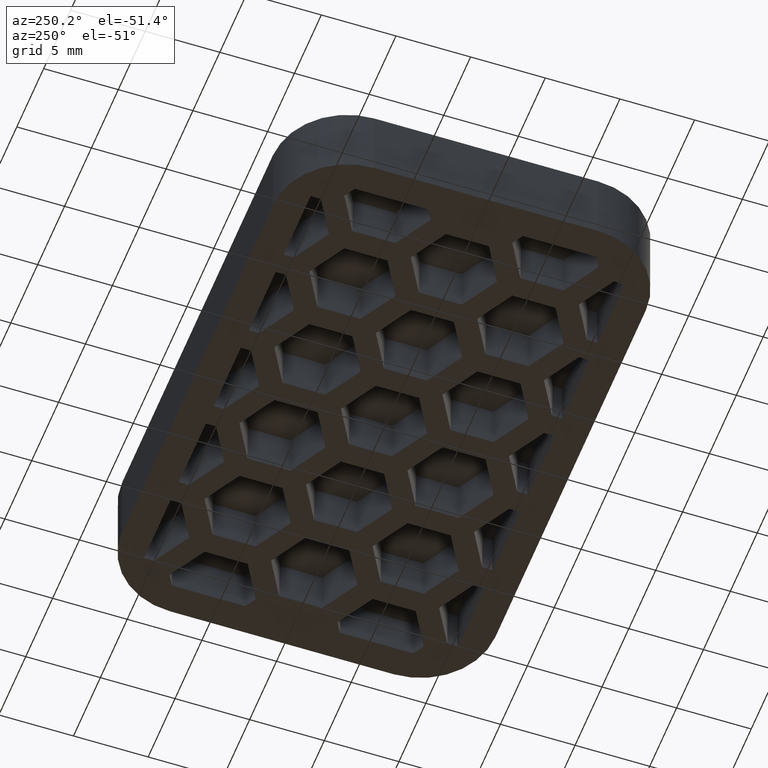
[diagram: clean part render]
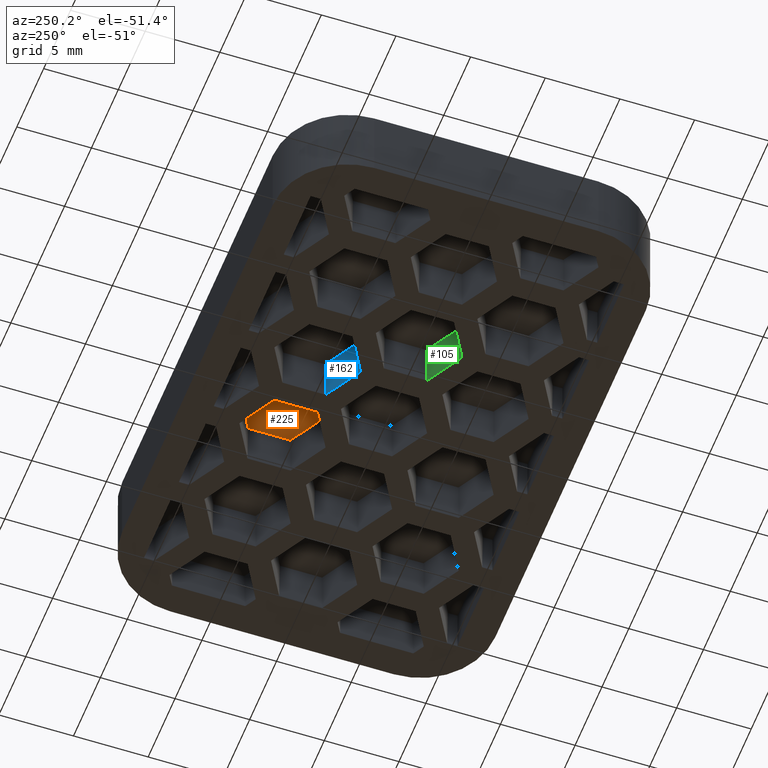
[diagram: same view with three faces highlighted in distinct colors, each labeled with its STEP entity id]
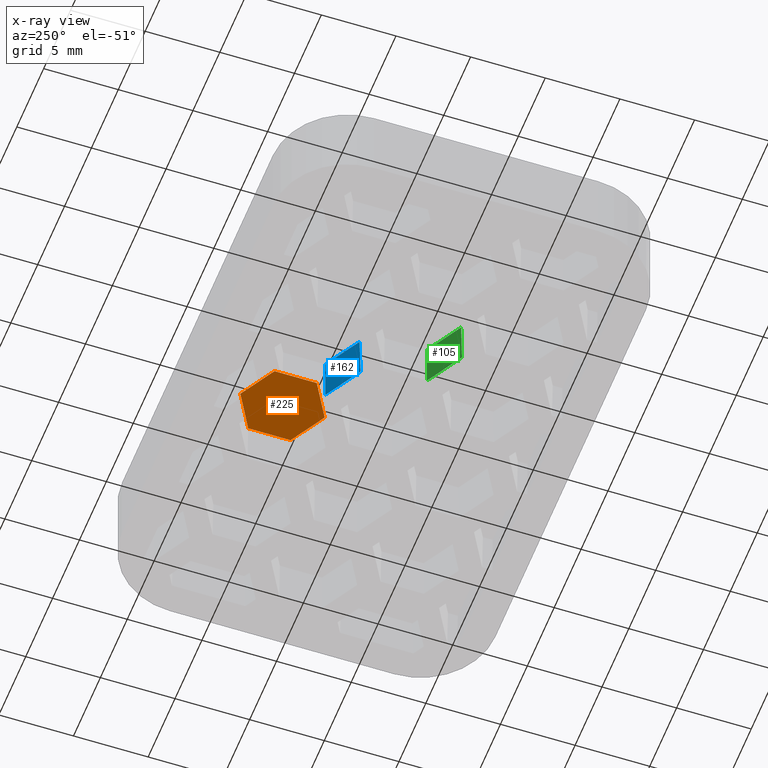
[diagram: x-ray of the same camera — body ghosted, the three highlighted faces saturated]
A machine part, auxiliary view with three faces highlighted in distinct colors.
The next image is the same camera in x-ray (body ghosted, the three faces saturated) — at least one of them is partly hidden behind the body in this view.
Their STEP definitions:

[orange] entity #225 — the highlighted planar face has unit normal (0, -0, -1).
#225 = ADVANCED_FACE( '', ( #609 ), #610, .T. );
#609 = FACE_OUTER_BOUND( '', #1097, .T. );
#610 = PLANE( '', #1098 );
#1097 = EDGE_LOOP( '', ( #2368, #2369, #2370, #2371, #2372, #2373 ) );
#1098 = AXIS2_PLACEMENT_3D( '', #2374, #2375, #2376 );
#2368 = ORIENTED_EDGE( '', *, *, #3402, .F. );
#2369 = ORIENTED_EDGE( '', *, *, #3406, .F. );
#2370 = ORIENTED_EDGE( '', *, *, #3409, .F. );
#2371 = ORIENTED_EDGE( '', *, *, #3412, .F. );
#2372 = ORIENTED_EDGE( '', *, *, #3415, .F. );
#2373 = ORIENTED_EDGE( '', *, *, #3418, .F. );
#2374 = CARTESIAN_POINT( '', ( 30.5000000000000, 1.83690953073356E-016, 3.00000000000000 ) );
#2375 = DIRECTION( '', ( 0.000000000000000, -6.12303176911189E-017, -1.00000000000000 ) );
#2376 = DIRECTION( '', ( 0.000000000000000, -1.00000000000000, 6.12303176911189E-017 ) );
#3402 = EDGE_CURVE( '', #4191, #4192, #4193, .F. );
#3406 = EDGE_CURVE( '', #4199, #4191, #4200, .F. );
#3409 = EDGE_CURVE( '', #4204, #4199, #4205, .F. );
#3412 = EDGE_CURVE( '', #4209, #4204, #4210, .F. );
#3415 = EDGE_CURVE( '', #4214, #4209, #4215, .F. );
#3418 = EDGE_CURVE( '', #4192, #4214, #4219, .F. );
#4191 = VERTEX_POINT( '', #5441 );
#4192 = VERTEX_POINT( '', #5442 );
#4193 = LINE( '', #5443, #5444 );
#4199 = VERTEX_POINT( '', #5453 );
#4200 = LINE( '', #5454, #5455 );
#4204 = VERTEX_POINT( '', #5461 );
#4205 = LINE( '', #5462, #5463 );
#4209 = VERTEX_POINT( '', #5469 );
#4210 = LINE( '', #5470, #5471 );
#4214 = VERTEX_POINT( '', #5477 );
#4215 = LINE( '', #5478, #5479 );
#4219 = LINE( '', #5485, #5486 );
#5441 = CARTESIAN_POINT( '', ( 5.69763480521535, 4.21602251092987, 3.00000000000000 ) );
#5442 = CARTESIAN_POINT( '', ( 5.69763480521535, 7.04230773826783, 3.00000000000000 ) );
#5443 = CARTESIAN_POINT( '', ( 5.69763480521535, 10.5000000000000, 2.99999999999998 ) );
#5444 = VECTOR( '', #6434, 1000.00000000000 );
#5453 = CARTESIAN_POINT( '', ( 3.25000000000000, 2.80287989726090, 3.00000000000000 ) );
#5454 = CARTESIAN_POINT( '', ( -10.1045492275240, -4.90737269415620, 2.99999999999998 ) );
#5455 = VECTOR( '', #6438, 1000.00000000000 );
#5461 = CARTESIAN_POINT( '', ( 0.802365194784645, 4.21602251092987, 3.00000000000000 ) );
#5462 = CARTESIAN_POINT( '', ( -16.7704507724760, 14.3616925400475, 2.99999999999998 ) );
#5463 = VECTOR( '', #6441, 1000.00000000000 );
#5469 = CARTESIAN_POINT( '', ( 0.802365194784646, 7.04230773826783, 3.00000000000000 ) );
#5470 = CARTESIAN_POINT( '', ( 0.802365194784643, 10.5000000000000, 2.99999999999998 ) );
#5471 = VECTOR( '', #6444, 1000.00000000000 );
#5477 = CARTESIAN_POINT( '', ( 3.25000000000000, 8.45545035193681, 2.99999999999998 ) );
#5478 = CARTESIAN_POINT( '', ( -12.5521840327393, -0.667944853149263, 2.99999999999998 ) );
#5479 = VECTOR( '', #6447, 1000.00000000000 );
#5485 = CARTESIAN_POINT( '', ( -14.3228159672606, 18.6011203810545, 2.99999999999998 ) );
#5486 = VECTOR( '', #6450, 1000.00000000000 );
#6434 = DIRECTION( '', ( -4.44089209850063E-016, -1.00000000000000, 6.12303176911189E-017 ) );
#6438 = DIRECTION( '', ( -0.866025403784439, -0.500000000000000, 3.06151588455594E-017 ) );
#6441 = DIRECTION( '', ( -0.866025403784439, 0.500000000000000, -3.06151588455594E-017 ) );
#6444 = DIRECTION( '', ( -2.77555756156289E-016, 1.00000000000000, -6.12303176911189E-017 ) );
#6447 = DIRECTION( '', ( 0.866025403784438, 0.500000000000000, -3.06151588455595E-017 ) );
#6450 = DIRECTION( '', ( 0.866025403784439, -0.500000000000000, 3.06151588455594E-017 ) );

[blue] entity #162 — the highlighted planar face has unit normal (0.4999, -0.8659, 0.0175).
#162 = ADVANCED_FACE( '', ( #483 ), #484, .F. );
#483 = FACE_OUTER_BOUND( '', #971, .T. );
#484 = PLANE( '', #972 );
#971 = EDGE_LOOP( '', ( #1925, #1926, #1927, #1928 ) );
#972 = AXIS2_PLACEMENT_3D( '', #1929, #1930, #1931 );
#1925 = ORIENTED_EDGE( '', *, *, #3388, .T. );
#1926 = ORIENTED_EDGE( '', *, *, #3387, .T. );
#1927 = ORIENTED_EDGE( '', *, *, #3389, .F. );
#1928 = ORIENTED_EDGE( '', *, *, #3390, .F. );
#1929 = CARTESIAN_POINT( '', ( -0.750000000000005, 4.18578945162479, -7.19519112181835E-015 ) );
#1930 = DIRECTION( '', ( 0.499923847578195, -0.865893503920754, 0.0174524064372836 ) );
#1931 = DIRECTION( '', ( 0.866025403784439, 0.500000000000000, -3.06058338817720E-017 ) );
#3387 = EDGE_CURVE( '', #4161, #4166, #4168, .T. );
#3388 = EDGE_CURVE( '', #4169, #4161, #4170, .F. );
#3389 = EDGE_CURVE( '', #4171, #4166, #4172, .F. );
#3390 = EDGE_CURVE( '', #4169, #4171, #4173, .T. );
#4161 = VERTEX_POINT( '', #5393 );
#4166 = VERTEX_POINT( '', #5400 );
#4168 = LINE( '', #5403, #5404 );
#4169 = VERTEX_POINT( '', #5405 );
#4170 = LINE( '', #5406, #5407 );
#4171 = VERTEX_POINT( '', #5408 );
#4172 = LINE( '', #5409, #5410 );
#4173 = LINE( '', #5411, #5412 );
#5393 = CARTESIAN_POINT( '', ( -0.802365194784650, 4.21602251092987, 3.00000000000000 ) );
#5400 = CARTESIAN_POINT( '', ( -0.750000000000006, 4.18578945162479, -7.19519112181835E-015 ) );
#5403 = CARTESIAN_POINT( '', ( -0.749010194399842, 4.18521798709508, -0.0567059248553564 ) );
#5404 = VECTOR( '', #6419, 1000.00000000000 );
#5405 = CARTESIAN_POINT( '', ( -3.25000000000000, 2.80287989726089, 3.00000000000000 ) );
#5406 = CARTESIAN_POINT( '', ( -11.7295492275240, -2.09279013185677, 2.99999999999998 ) );
#5407 = VECTOR( '', #6420, 1000.00000000000 );
#5408 = CARTESIAN_POINT( '', ( -3.25000000000001, 2.74241377865072, -7.10681277081451E-015 ) );
#5409 = CARTESIAN_POINT( '', ( -2.00000000000001, 3.46410161513775, -7.15100194631643E-015 ) );
#5410 = VECTOR( '', #6421, 1000.00000000000 );
#5411 = CARTESIAN_POINT( '', ( -3.25000000000001, 2.74299989611708, 0.0290799614642774 ) );
#5412 = VECTOR( '', #6422, 1000.00000000000 );
#6419 = DIRECTION( '', ( 0.0174515205435363, -0.0100756400835790, -0.999796942337605 ) );
#6420 = DIRECTION( '', ( -0.866025403784439, -0.500000000000000, 3.06151588455594E-017 ) );
#6421 = DIRECTION( '', ( -0.866025403784439, -0.500000000000000, 3.06151588455594E-017 ) );
#6422 = DIRECTION( '', ( 3.00523943436880E-018, -0.0201512801671580, -0.999796942337605 ) );

[green] entity #105 — the highlighted planar face has unit normal (0.4999, -0.8659, 0.0175).
#105 = ADVANCED_FACE( '', ( #369 ), #370, .F. );
#369 = FACE_OUTER_BOUND( '', #857, .T. );
#370 = PLANE( '', #858 );
#857 = EDGE_LOOP( '', ( #1526, #1527, #1528, #1529 ) );
#858 = AXIS2_PLACEMENT_3D( '', #1530, #1531, #1532 );
#1526 = ORIENTED_EDGE( '', *, *, #3223, .T. );
#1527 = ORIENTED_EDGE( '', *, *, #3225, .T. );
#1528 = ORIENTED_EDGE( '', *, *, #3226, .F. );
#1529 = ORIENTED_EDGE( '', *, *, #3227, .F. );
#1530 = CARTESIAN_POINT( '', ( 0.874999999999993, 1.37120688932536, -7.02285333736087E-015 ) );
#1531 = DIRECTION( '', ( 0.499923847578196, -0.865893503920754, 0.0174524064372836 ) );
#1532 = DIRECTION( '', ( 0.866025403784439, 0.500000000000000, -3.15746370548615E-017 ) );
#3223 = EDGE_CURVE( '', #3899, #3897, #3900, .T. );
#3225 = EDGE_CURVE( '', #3897, #3902, #3903, .T. );
#3226 = EDGE_CURVE( '', #3904, #3902, #3905, .T. );
#3227 = EDGE_CURVE( '', #3899, #3904, #3906, .T. );
#3897 = VERTEX_POINT( '', #4967 );
#3899 = VERTEX_POINT( '', #4970 );
#3900 = LINE( '', #4971, #4972 );
#3902 = VERTEX_POINT( '', #4975 );
#3903 = LINE( '', #4976, #4977 );
#3904 = VERTEX_POINT( '', #4978 );
#3905 = LINE( '', #4979, #4980 );
#3906 = LINE( '', #4981, #4982 );
#4967 = CARTESIAN_POINT( '', ( -4.00000000000001, -1.44337567297406, -6.85051555290339E-015 ) );
#4970 = CARTESIAN_POINT( '', ( -4.05236519478466, -1.41314261366898, 2.99999999999998 ) );
#4971 = CARTESIAN_POINT( '', ( -4.00000000000001, -1.44337567297406, -6.85051555290339E-015 ) );
#4972 = VECTOR( '', #6255, 1000.00000000000 );
#4975 = CARTESIAN_POINT( '', ( -6.50000000000001, -2.88675134594813, -6.76213720189956E-015 ) );
#4976 = CARTESIAN_POINT( '', ( -4.00000000000001, -1.44337567297406, -6.85051555290339E-015 ) );
#4977 = VECTOR( '', #6257, 1000.00000000000 );
#4978 = CARTESIAN_POINT( '', ( -6.50000000000001, -2.82628522733796, 2.99999999999998 ) );
#4979 = CARTESIAN_POINT( '', ( -6.50000000000001, -2.88502229942237, 0.0857858863196269 ) );
#4980 = VECTOR( '', #6258, 1000.00000000000 );
#4981 = CARTESIAN_POINT( '', ( -10.1045492275240, -4.90737269415619, 2.99999999999998 ) );
#4982 = VECTOR( '', #6259, 1000.00000000000 );
#6255 = DIRECTION( '', ( 0.0174515205435363, -0.0100756400835790, -0.999796942337605 ) );
#6257 = DIRECTION( '', ( -0.866025403784439, -0.500000000000000, 3.06151588455594E-017 ) );
#6258 = DIRECTION( '', ( 5.50935137850124E-018, -0.0201512801671580, -0.999796942337605 ) );
#6259 = DIRECTION( '', ( -0.866025403784439, -0.500000000000000, 3.06151588455594E-017 ) );